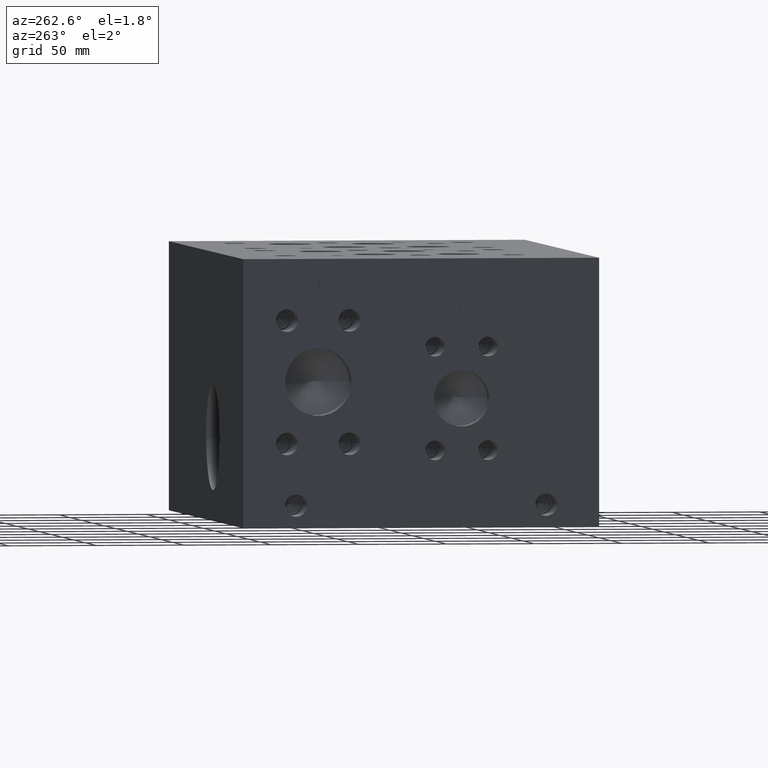
[diagram: clean part render]
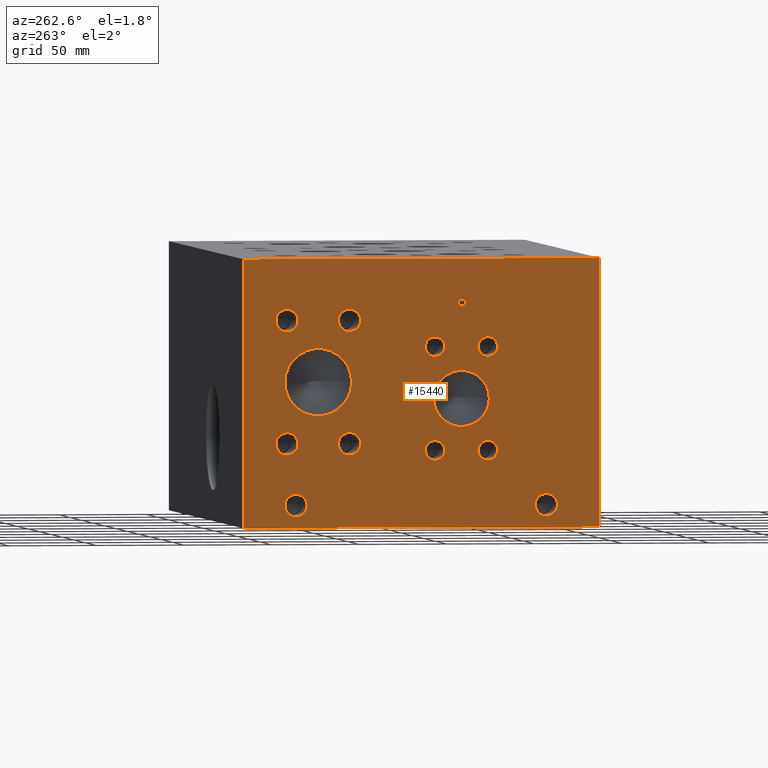
[diagram: same view with one face highlighted and labeled with its STEP entity id]
A machine part, auxiliary view. The second image highlights one B-rep face of the part: STEP entity #15440.
In plain terms, the highlighted planar face has unit normal (-1, 0, 0).
Its self-contained STEP definition (entity closure, byte-faithful):
#311=CIRCLE('',#16176,19.05);
#312=CIRCLE('',#16177,19.05);
#313=CIRCLE('',#16178,6.35);
#314=CIRCLE('',#16179,6.35);
#315=CIRCLE('',#16180,6.35);
#316=CIRCLE('',#16181,6.35);
#317=CIRCLE('',#16182,6.35);
#318=CIRCLE('',#16183,6.35);
#319=CIRCLE('',#16184,6.35);
#320=CIRCLE('',#16185,6.35);
#321=CIRCLE('',#16186,15.875);
#322=CIRCLE('',#16187,15.875);
#323=CIRCLE('',#16188,5.5626);
#324=CIRCLE('',#16189,5.5626);
#325=CIRCLE('',#16190,5.5626);
#326=CIRCLE('',#16191,5.5626);
#327=CIRCLE('',#16192,5.5626);
#328=CIRCLE('',#16193,5.5626);
#329=CIRCLE('',#16194,5.5626);
#330=CIRCLE('',#16195,5.5626);
#331=CIRCLE('',#16196,6.35);
#332=CIRCLE('',#16197,6.35);
#333=CIRCLE('',#16198,6.35);
#334=CIRCLE('',#16199,6.35);
#836=FACE_BOUND('',#2850,.T.);
#837=FACE_BOUND('',#2851,.T.);
#838=FACE_BOUND('',#2852,.T.);
#839=FACE_BOUND('',#2853,.T.);
#840=FACE_BOUND('',#2854,.T.);
#841=FACE_BOUND('',#2855,.T.);
#842=FACE_BOUND('',#2856,.T.);
#843=FACE_BOUND('',#2857,.T.);
#844=FACE_BOUND('',#2858,.T.);
#845=FACE_BOUND('',#2859,.T.);
#846=FACE_BOUND('',#2860,.T.);
#847=FACE_BOUND('',#2861,.T.);
#848=FACE_BOUND('',#2862,.T.);
#849=FACE_BOUND('',#2863,.T.);
#1258=B_SPLINE_CURVE_WITH_KNOTS('',2,(#25629,#25630,#25631,#25632),
 .UNSPECIFIED.,.F.,.F.,(3,1,3),(0.,1.,2.),.UNSPECIFIED.);
#1260=B_SPLINE_CURVE_WITH_KNOTS('',2,(#25650,#25651,#25652,#25653),
 .UNSPECIFIED.,.F.,.F.,(3,1,3),(0.,1.,2.),.UNSPECIFIED.);
#1262=B_SPLINE_CURVE_WITH_KNOTS('',2,(#25699,#25700,#25701,#25702),
 .UNSPECIFIED.,.F.,.F.,(3,1,3),(0.,1.,2.),.UNSPECIFIED.);
#1264=B_SPLINE_CURVE_WITH_KNOTS('',2,(#25717,#25718,#25719,#25720),
 .UNSPECIFIED.,.F.,.F.,(3,1,3),(0.,1.,2.),.UNSPECIFIED.);
#1949=FACE_OUTER_BOUND('',#2849,.T.);
#2849=EDGE_LOOP('',(#12487,#12488,#12489,#12490));
#2850=EDGE_LOOP('',(#12491,#12492));
#2851=EDGE_LOOP('',(#12493,#12494));
#2852=EDGE_LOOP('',(#12495,#12496));
#2853=EDGE_LOOP('',(#12497,#12498));
#2854=EDGE_LOOP('',(#12499,#12500));
#2855=EDGE_LOOP('',(#12501,#12502));
#2856=EDGE_LOOP('',(#12503,#12504));
#2857=EDGE_LOOP('',(#12505,#12506));
#2858=EDGE_LOOP('',(#12507,#12508));
#2859=EDGE_LOOP('',(#12509,#12510));
#2860=EDGE_LOOP('',(#12511,#12512));
#2861=EDGE_LOOP('',(#12513,#12514));
#2862=EDGE_LOOP('',(#12515,#12516,#12517,#12518,#12519,#12520,#12521,#12522));
#2863=EDGE_LOOP('',(#12523,#12524,#12525,#12526,#12527,#12528,#12529,#12530,
#12531));
#3582=LINE('',#22940,#4916);
#4311=LINE('',#25662,#5645);
#4314=LINE('',#25668,#5648);
#4317=LINE('',#25674,#5651);
#4320=LINE('',#25680,#5654);
#4323=LINE('',#25686,#5657);
#4327=LINE('',#25728,#5661);
#4328=LINE('',#25730,#5662);
#4329=LINE('',#25731,#5663);
#4330=LINE('',#25782,#5664);
#4331=LINE('',#25784,#5665);
#4332=LINE('',#25786,#5666);
#4333=LINE('',#25788,#5667);
#4334=LINE('',#25790,#5668);
#4335=LINE('',#25792,#5669);
#4336=LINE('',#25794,#5670);
#4337=LINE('',#25795,#5671);
#4916=VECTOR('',#17431,10.);
#5645=VECTOR('',#18812,10.);
#5648=VECTOR('',#18817,10.);
#5651=VECTOR('',#18822,10.);
#5654=VECTOR('',#18827,10.);
#5657=VECTOR('',#18832,10.);
#5661=VECTOR('',#18840,10.);
#5662=VECTOR('',#18841,10.);
#5663=VECTOR('',#18842,10.);
#5664=VECTOR('',#18891,10.);
#5665=VECTOR('',#18892,10.);
#5666=VECTOR('',#18893,10.);
#5667=VECTOR('',#18894,10.);
#5668=VECTOR('',#18895,10.);
#5669=VECTOR('',#18896,10.);
#5670=VECTOR('',#18897,10.);
#5671=VECTOR('',#18898,10.);
#6269=VERTEX_POINT('',#22933);
#6272=VERTEX_POINT('',#22938);
#6909=VERTEX_POINT('',#25627);
#6910=VERTEX_POINT('',#25628);
#6913=VERTEX_POINT('',#25649);
#6915=VERTEX_POINT('',#25661);
#6917=VERTEX_POINT('',#25667);
#6919=VERTEX_POINT('',#25673);
#6921=VERTEX_POINT('',#25679);
#6923=VERTEX_POINT('',#25685);
#6925=VERTEX_POINT('',#25698);
#6927=VERTEX_POINT('',#25727);
#6928=VERTEX_POINT('',#25729);
#6929=VERTEX_POINT('',#25732);
#6930=VERTEX_POINT('',#25733);
#6931=VERTEX_POINT('',#25736);
#6932=VERTEX_POINT('',#25737);
#6933=VERTEX_POINT('',#25740);
#6934=VERTEX_POINT('',#25741);
#6935=VERTEX_POINT('',#25744);
#6936=VERTEX_POINT('',#25745);
#6937=VERTEX_POINT('',#25748);
#6938=VERTEX_POINT('',#25749);
#6939=VERTEX_POINT('',#25752);
#6940=VERTEX_POINT('',#25753);
#6941=VERTEX_POINT('',#25756);
#6942=VERTEX_POINT('',#25757);
#6943=VERTEX_POINT('',#25760);
#6944=VERTEX_POINT('',#25761);
#6945=VERTEX_POINT('',#25764);
#6946=VERTEX_POINT('',#25765);
#6947=VERTEX_POINT('',#25768);
#6948=VERTEX_POINT('',#25769);
#6949=VERTEX_POINT('',#25772);
#6950=VERTEX_POINT('',#25773);
#6951=VERTEX_POINT('',#25776);
#6952=VERTEX_POINT('',#25777);
#6953=VERTEX_POINT('',#25780);
#6954=VERTEX_POINT('',#25781);
#6955=VERTEX_POINT('',#25783);
#6956=VERTEX_POINT('',#25785);
#6957=VERTEX_POINT('',#25787);
#6958=VERTEX_POINT('',#25789);
#6959=VERTEX_POINT('',#25791);
#6960=VERTEX_POINT('',#25793);
#7991=EDGE_CURVE('',#6269,#6272,#3582,.T.);
#8911=EDGE_CURVE('',#6909,#6910,#1258,.T.);
#8915=EDGE_CURVE('',#6913,#6909,#1260,.T.);
#8918=EDGE_CURVE('',#6915,#6913,#4311,.T.);
#8921=EDGE_CURVE('',#6917,#6915,#4314,.T.);
#8924=EDGE_CURVE('',#6919,#6917,#4317,.T.);
#8927=EDGE_CURVE('',#6921,#6919,#4320,.T.);
#8930=EDGE_CURVE('',#6923,#6921,#4323,.T.);
#8933=EDGE_CURVE('',#6925,#6923,#1262,.T.);
#8936=EDGE_CURVE('',#6910,#6925,#1264,.T.);
#8938=EDGE_CURVE('',#6927,#6269,#4327,.T.);
#8939=EDGE_CURVE('',#6928,#6272,#4328,.T.);
#8940=EDGE_CURVE('',#6927,#6928,#4329,.T.);
#8941=EDGE_CURVE('',#6929,#6930,#311,.T.);
#8942=EDGE_CURVE('',#6930,#6929,#312,.T.);
#8943=EDGE_CURVE('',#6931,#6932,#313,.T.);
#8944=EDGE_CURVE('',#6932,#6931,#314,.T.);
#8945=EDGE_CURVE('',#6933,#6934,#315,.T.);
#8946=EDGE_CURVE('',#6934,#6933,#316,.T.);
#8947=EDGE_CURVE('',#6935,#6936,#317,.T.);
#8948=EDGE_CURVE('',#6936,#6935,#318,.T.);
#8949=EDGE_CURVE('',#6937,#6938,#319,.T.);
#8950=EDGE_CURVE('',#6938,#6937,#320,.T.);
#8951=EDGE_CURVE('',#6939,#6940,#321,.T.);
#8952=EDGE_CURVE('',#6940,#6939,#322,.T.);
#8953=EDGE_CURVE('',#6941,#6942,#323,.T.);
#8954=EDGE_CURVE('',#6942,#6941,#324,.T.);
#8955=EDGE_CURVE('',#6943,#6944,#325,.T.);
#8956=EDGE_CURVE('',#6944,#6943,#326,.T.);
#8957=EDGE_CURVE('',#6945,#6946,#327,.T.);
#8958=EDGE_CURVE('',#6946,#6945,#328,.T.);
#8959=EDGE_CURVE('',#6947,#6948,#329,.T.);
#8960=EDGE_CURVE('',#6948,#6947,#330,.T.);
#8961=EDGE_CURVE('',#6949,#6950,#331,.T.);
#8962=EDGE_CURVE('',#6950,#6949,#332,.T.);
#8963=EDGE_CURVE('',#6951,#6952,#333,.T.);
#8964=EDGE_CURVE('',#6952,#6951,#334,.T.);
#8965=EDGE_CURVE('',#6953,#6954,#4330,.T.);
#8966=EDGE_CURVE('',#6954,#6955,#4331,.T.);
#8967=EDGE_CURVE('',#6955,#6956,#4332,.T.);
#8968=EDGE_CURVE('',#6956,#6957,#4333,.T.);
#8969=EDGE_CURVE('',#6957,#6958,#4334,.T.);
#8970=EDGE_CURVE('',#6958,#6959,#4335,.T.);
#8971=EDGE_CURVE('',#6959,#6960,#4336,.T.);
#8972=EDGE_CURVE('',#6960,#6953,#4337,.T.);
#12487=ORIENTED_EDGE('',*,*,#8938,.T.);
#12488=ORIENTED_EDGE('',*,*,#7991,.T.);
#12489=ORIENTED_EDGE('',*,*,#8939,.F.);
#12490=ORIENTED_EDGE('',*,*,#8940,.F.);
#12491=ORIENTED_EDGE('',*,*,#8941,.T.);
#12492=ORIENTED_EDGE('',*,*,#8942,.T.);
#12493=ORIENTED_EDGE('',*,*,#8943,.T.);
#12494=ORIENTED_EDGE('',*,*,#8944,.T.);
#12495=ORIENTED_EDGE('',*,*,#8945,.T.);
#12496=ORIENTED_EDGE('',*,*,#8946,.T.);
#12497=ORIENTED_EDGE('',*,*,#8947,.T.);
#12498=ORIENTED_EDGE('',*,*,#8948,.T.);
#12499=ORIENTED_EDGE('',*,*,#8949,.T.);
#12500=ORIENTED_EDGE('',*,*,#8950,.T.);
#12501=ORIENTED_EDGE('',*,*,#8951,.T.);
#12502=ORIENTED_EDGE('',*,*,#8952,.T.);
#12503=ORIENTED_EDGE('',*,*,#8953,.T.);
#12504=ORIENTED_EDGE('',*,*,#8954,.T.);
#12505=ORIENTED_EDGE('',*,*,#8955,.T.);
#12506=ORIENTED_EDGE('',*,*,#8956,.T.);
#12507=ORIENTED_EDGE('',*,*,#8957,.T.);
#12508=ORIENTED_EDGE('',*,*,#8958,.T.);
#12509=ORIENTED_EDGE('',*,*,#8959,.T.);
#12510=ORIENTED_EDGE('',*,*,#8960,.T.);
#12511=ORIENTED_EDGE('',*,*,#8961,.T.);
#12512=ORIENTED_EDGE('',*,*,#8962,.T.);
#12513=ORIENTED_EDGE('',*,*,#8963,.T.);
#12514=ORIENTED_EDGE('',*,*,#8964,.T.);
#12515=ORIENTED_EDGE('',*,*,#8965,.T.);
#12516=ORIENTED_EDGE('',*,*,#8966,.T.);
#12517=ORIENTED_EDGE('',*,*,#8967,.T.);
#12518=ORIENTED_EDGE('',*,*,#8968,.T.);
#12519=ORIENTED_EDGE('',*,*,#8969,.T.);
#12520=ORIENTED_EDGE('',*,*,#8970,.T.);
#12521=ORIENTED_EDGE('',*,*,#8971,.T.);
#12522=ORIENTED_EDGE('',*,*,#8972,.T.);
#12523=ORIENTED_EDGE('',*,*,#8911,.T.);
#12524=ORIENTED_EDGE('',*,*,#8936,.T.);
#12525=ORIENTED_EDGE('',*,*,#8933,.T.);
#12526=ORIENTED_EDGE('',*,*,#8930,.T.);
#12527=ORIENTED_EDGE('',*,*,#8927,.T.);
#12528=ORIENTED_EDGE('',*,*,#8924,.T.);
#12529=ORIENTED_EDGE('',*,*,#8921,.T.);
#12530=ORIENTED_EDGE('',*,*,#8918,.T.);
#12531=ORIENTED_EDGE('',*,*,#8915,.T.);
#14342=PLANE('',#16175);
#15440=ADVANCED_FACE('',(#1949,#836,#837,#838,#839,#840,#841,#842,#843,
#844,#845,#846,#847,#848,#849),#14342,.T.);
#16175=AXIS2_PLACEMENT_3D('',#25726,#18838,#18839);
#16176=AXIS2_PLACEMENT_3D('',#25734,#18843,#18844);
#16177=AXIS2_PLACEMENT_3D('',#25735,#18845,#18846);
#16178=AXIS2_PLACEMENT_3D('',#25738,#18847,#18848);
#16179=AXIS2_PLACEMENT_3D('',#25739,#18849,#18850);
#16180=AXIS2_PLACEMENT_3D('',#25742,#18851,#18852);
#16181=AXIS2_PLACEMENT_3D('',#25743,#18853,#18854);
#16182=AXIS2_PLACEMENT_3D('',#25746,#18855,#18856);
#16183=AXIS2_PLACEMENT_3D('',#25747,#18857,#18858);
#16184=AXIS2_PLACEMENT_3D('',#25750,#18859,#18860);
#16185=AXIS2_PLACEMENT_3D('',#25751,#18861,#18862);
#16186=AXIS2_PLACEMENT_3D('',#25754,#18863,#18864);
#16187=AXIS2_PLACEMENT_3D('',#25755,#18865,#18866);
#16188=AXIS2_PLACEMENT_3D('',#25758,#18867,#18868);
#16189=AXIS2_PLACEMENT_3D('',#25759,#18869,#18870);
#16190=AXIS2_PLACEMENT_3D('',#25762,#18871,#18872);
#16191=AXIS2_PLACEMENT_3D('',#25763,#18873,#18874);
#16192=AXIS2_PLACEMENT_3D('',#25766,#18875,#18876);
#16193=AXIS2_PLACEMENT_3D('',#25767,#18877,#18878);
#16194=AXIS2_PLACEMENT_3D('',#25770,#18879,#18880);
#16195=AXIS2_PLACEMENT_3D('',#25771,#18881,#18882);
#16196=AXIS2_PLACEMENT_3D('',#25774,#18883,#18884);
#16197=AXIS2_PLACEMENT_3D('',#25775,#18885,#18886);
#16198=AXIS2_PLACEMENT_3D('',#25778,#18887,#18888);
#16199=AXIS2_PLACEMENT_3D('',#25779,#18889,#18890);
#17431=DIRECTION('',(0.,0.,1.));
#18812=DIRECTION('',(0.,-1.,0.));
#18817=DIRECTION('',(0.,-2.79741238752512E-15,1.));
#18822=DIRECTION('',(0.,1.,0.));
#18827=DIRECTION('',(0.,7.50436279610002E-15,-1.));
#18832=DIRECTION('',(0.,1.,0.));
#18838=DIRECTION('center_axis',(-1.,0.,0.));
#18839=DIRECTION('ref_axis',(0.,-1.,0.));
#18840=DIRECTION('',(0.,-1.,0.));
#18841=DIRECTION('',(0.,-1.,0.));
#18842=DIRECTION('',(0.,0.,1.));
#18843=DIRECTION('center_axis',(1.,0.,0.));
#18844=DIRECTION('ref_axis',(0.,1.,0.));
#18845=DIRECTION('center_axis',(1.,0.,0.));
#18846=DIRECTION('ref_axis',(0.,1.,0.));
#18847=DIRECTION('center_axis',(1.,0.,0.));
#18848=DIRECTION('ref_axis',(0.,1.,0.));
#18849=DIRECTION('center_axis',(1.,0.,0.));
#18850=DIRECTION('ref_axis',(0.,1.,0.));
#18851=DIRECTION('center_axis',(1.,0.,0.));
#18852=DIRECTION('ref_axis',(0.,1.,0.));
#18853=DIRECTION('center_axis',(1.,0.,0.));
#18854=DIRECTION('ref_axis',(0.,1.,0.));
#18855=DIRECTION('center_axis',(1.,0.,0.));
#18856=DIRECTION('ref_axis',(0.,1.,0.));
#18857=DIRECTION('center_axis',(1.,0.,0.));
#18858=DIRECTION('ref_axis',(0.,1.,0.));
#18859=DIRECTION('center_axis',(1.,0.,0.));
#18860=DIRECTION('ref_axis',(0.,1.,0.));
#18861=DIRECTION('center_axis',(1.,0.,0.));
#18862=DIRECTION('ref_axis',(0.,1.,0.));
#18863=DIRECTION('center_axis',(1.,0.,0.));
#18864=DIRECTION('ref_axis',(0.,1.,0.));
#18865=DIRECTION('center_axis',(1.,0.,0.));
#18866=DIRECTION('ref_axis',(0.,1.,0.));
#18867=DIRECTION('center_axis',(1.,0.,0.));
#18868=DIRECTION('ref_axis',(0.,1.,0.));
#18869=DIRECTION('center_axis',(1.,0.,0.));
#18870=DIRECTION('ref_axis',(0.,1.,0.));
#18871=DIRECTION('center_axis',(1.,0.,0.));
#18872=DIRECTION('ref_axis',(0.,1.,0.));
#18873=DIRECTION('center_axis',(1.,0.,0.));
#18874=DIRECTION('ref_axis',(0.,1.,0.));
#18875=DIRECTION('center_axis',(1.,0.,0.));
#18876=DIRECTION('ref_axis',(0.,1.,0.));
#18877=DIRECTION('center_axis',(1.,0.,0.));
#18878=DIRECTION('ref_axis',(0.,1.,0.));
#18879=DIRECTION('center_axis',(1.,0.,0.));
#18880=DIRECTION('ref_axis',(0.,1.,0.));
#18881=DIRECTION('center_axis',(1.,0.,0.));
#18882=DIRECTION('ref_axis',(0.,1.,0.));
#18883=DIRECTION('center_axis',(1.,0.,0.));
#18884=DIRECTION('ref_axis',(0.,1.,0.));
#18885=DIRECTION('center_axis',(1.,0.,0.));
#18886=DIRECTION('ref_axis',(0.,1.,0.));
#18887=DIRECTION('center_axis',(1.,0.,0.));
#18888=DIRECTION('ref_axis',(0.,1.,0.));
#18889=DIRECTION('center_axis',(1.,0.,0.));
#18890=DIRECTION('ref_axis',(0.,1.,0.));
#18891=DIRECTION('',(0.,1.,0.));
#18892=DIRECTION('',(0.,0.,1.));
#18893=DIRECTION('',(0.,1.,8.33818088455555E-15));
#18894=DIRECTION('',(0.,0.,1.));
#18895=DIRECTION('',(0.,-1.,-3.47984565141733E-15));
#18896=DIRECTION('',(0.,0.,-1.));
#18897=DIRECTION('',(0.,1.,8.33818088455555E-15));
#18898=DIRECTION('',(0.,0.,-1.));
#22933=CARTESIAN_POINT('',(0.,0.,0.));
#22938=CARTESIAN_POINT('',(0.,0.,152.4));
#22940=CARTESIAN_POINT('',(0.,0.,0.));
#25627=CARTESIAN_POINT('',(0.,77.0619327976406,128.985018143971));
#25628=CARTESIAN_POINT('',(0.,76.305490345468,127.466987372604));
#25629=CARTESIAN_POINT('Ctrl Pts',(0.,77.0619327976406,128.985018143971));
#25630=CARTESIAN_POINT('Ctrl Pts',(0.,76.7068679731514,128.743162393956));
#25631=CARTESIAN_POINT('Ctrl Pts',(0.,76.305490345468,127.997011675827));
#25632=CARTESIAN_POINT('Ctrl Pts',(0.,76.305490345468,127.466987372604));
#25649=CARTESIAN_POINT('',(0.,78.7240478456117,129.381249904633));
#25650=CARTESIAN_POINT('Ctrl Pts',(0.,78.7240478456117,129.381249904633));
#25651=CARTESIAN_POINT('Ctrl Pts',(0.,78.1580024732377,129.381249904633));
#25652=CARTESIAN_POINT('Ctrl Pts',(0.,77.365538951914,129.195998691856));
#25653=CARTESIAN_POINT('Ctrl Pts',(0.,77.0619327976406,128.985018143971));
#25661=CARTESIAN_POINT('',(0.,80.3192666223022,129.381249904633));
#25662=CARTESIAN_POINT('',(0.,141.759633311151,129.381249904633));
#25667=CARTESIAN_POINT('',(0.,80.3192666223023,123.03125));
#25668=CARTESIAN_POINT('',(0.,80.3192666223024,61.5156249999998));
#25673=CARTESIAN_POINT('',(0.,79.4753444307627,123.03125));
#25674=CARTESIAN_POINT('',(0.,141.337672215381,123.03125));
#25679=CARTESIAN_POINT('',(0.,79.4753444307627,125.398348829928));
#25680=CARTESIAN_POINT('',(0.,79.4753444307632,62.6991744149635));
#25685=CARTESIAN_POINT('',(0.,78.7600689147628,125.398348829928));
#25686=CARTESIAN_POINT('',(0.,140.980034457381,125.398348829928));
#25698=CARTESIAN_POINT('',(0.,76.8612439837989,126.05701980869));
#25699=CARTESIAN_POINT('Ctrl Pts',(0.,76.8612439837989,126.05701980869));
#25700=CARTESIAN_POINT('Ctrl Pts',(0.,77.1905794731802,125.732830186331));
#25701=CARTESIAN_POINT('Ctrl Pts',(0.,78.0808144679139,125.398348829928));
#25702=CARTESIAN_POINT('Ctrl Pts',(0.,78.7600689147628,125.398348829928));
#25717=CARTESIAN_POINT('Ctrl Pts',(0.,76.305490345468,127.466987372604));
#25718=CARTESIAN_POINT('Ctrl Pts',(0.,76.305490345468,127.055318010877));
#25719=CARTESIAN_POINT('Ctrl Pts',(0.,76.5988047656982,126.31431315977));
#25720=CARTESIAN_POINT('Ctrl Pts',(0.,76.8612439837989,126.05701980869));
#25726=CARTESIAN_POINT('Origin',(0.,203.2,0.));
#25727=CARTESIAN_POINT('',(0.,203.2,0.));
#25728=CARTESIAN_POINT('',(0.,203.2,0.));
#25729=CARTESIAN_POINT('',(0.,203.2,152.4));
#25730=CARTESIAN_POINT('',(0.,203.2,152.4));
#25731=CARTESIAN_POINT('',(0.,203.2,0.));
#25732=CARTESIAN_POINT('',(0.,179.4002,82.55));
#25733=CARTESIAN_POINT('',(0.,141.3002,82.55));
#25734=CARTESIAN_POINT('Origin',(0.,160.3502,82.55));
#25735=CARTESIAN_POINT('Origin',(0.,160.3502,82.55));
#25736=CARTESIAN_POINT('',(0.,148.844,117.475));
#25737=CARTESIAN_POINT('',(2.22044604925031E-15,136.144,117.475));
#25738=CARTESIAN_POINT('Origin',(0.,142.494,117.475));
#25739=CARTESIAN_POINT('Origin',(0.,142.494,117.475));
#25740=CARTESIAN_POINT('',(0.,184.5564,117.475));
#25741=CARTESIAN_POINT('',(2.22044604925031E-15,171.8564,117.475));
#25742=CARTESIAN_POINT('Origin',(0.,178.2064,117.475));
#25743=CARTESIAN_POINT('Origin',(0.,178.2064,117.475));
#25744=CARTESIAN_POINT('',(0.,148.844,47.625));
#25745=CARTESIAN_POINT('',(2.22044604925031E-15,136.144,47.625));
#25746=CARTESIAN_POINT('Origin',(0.,142.494,47.625));
#25747=CARTESIAN_POINT('Origin',(0.,142.494,47.625));
#25748=CARTESIAN_POINT('',(0.,184.5564,47.625));
#25749=CARTESIAN_POINT('',(2.22044604925031E-15,171.8564,47.625));
#25750=CARTESIAN_POINT('Origin',(0.,178.2064,47.625));
#25751=CARTESIAN_POINT('Origin',(0.,178.2064,47.625));
#25752=CARTESIAN_POINT('',(0.,94.4626,73.025));
#25753=CARTESIAN_POINT('',(0.,62.7126,73.025));
#25754=CARTESIAN_POINT('Origin',(0.,78.5876,73.025));
#25755=CARTESIAN_POINT('Origin',(0.,78.5876,73.025));
#25756=CARTESIAN_POINT('',(0.,99.2378,43.6626));
#25757=CARTESIAN_POINT('',(0.,88.1126,43.6626));
#25758=CARTESIAN_POINT('Origin',(0.,93.6752,43.6626));
#25759=CARTESIAN_POINT('Origin',(0.,93.6752,43.6626));
#25760=CARTESIAN_POINT('',(0.,69.06768,102.3874));
#25761=CARTESIAN_POINT('',(0.,57.94248,102.3874));
#25762=CARTESIAN_POINT('Origin',(0.,63.50508,102.3874));
#25763=CARTESIAN_POINT('Origin',(0.,63.50508,102.3874));
#25764=CARTESIAN_POINT('',(0.,99.2378,102.39248));
#25765=CARTESIAN_POINT('',(0.,88.1126,102.39248));
#25766=CARTESIAN_POINT('Origin',(0.,93.6752,102.39248));
#25767=CARTESIAN_POINT('Origin',(0.,93.6752,102.39248));
#25768=CARTESIAN_POINT('',(0.,69.06768,43.65752));
#25769=CARTESIAN_POINT('',(0.,57.94248,43.65752));
#25770=CARTESIAN_POINT('Origin',(0.,63.50508,43.65752));
#25771=CARTESIAN_POINT('Origin',(0.,63.50508,43.65752));
#25772=CARTESIAN_POINT('',(0.,179.3748,12.7));
#25773=CARTESIAN_POINT('',(0.,166.6748,12.7));
#25774=CARTESIAN_POINT('Origin',(0.,173.0248,12.7));
#25775=CARTESIAN_POINT('Origin',(0.,173.0248,12.7));
#25776=CARTESIAN_POINT('',(0.,36.5252,12.7));
#25777=CARTESIAN_POINT('',(0.,23.8252,12.7));
#25778=CARTESIAN_POINT('Origin',(0.,30.1752,12.7));
#25779=CARTESIAN_POINT('Origin',(0.,30.1752,12.7));
#25780=CARTESIAN_POINT('',(0.,159.749584728547,135.73125));
#25781=CARTESIAN_POINT('',(0.,160.593506920087,135.73125));
#25782=CARTESIAN_POINT('',(0.,181.474792364274,135.73125));
#25783=CARTESIAN_POINT('',(0.,160.593506920087,141.329953319482));
#25784=CARTESIAN_POINT('',(0.,160.593506920087,67.865625));
#25785=CARTESIAN_POINT('',(0.,162.723895867022,141.329953319482));
#25786=CARTESIAN_POINT('',(0.,181.896753460043,141.329953319482));
#25787=CARTESIAN_POINT('',(0.,162.723895867022,142.081249904633));
#25788=CARTESIAN_POINT('',(0.,162.723895867022,70.6649766597408));
#25789=CARTESIAN_POINT('',(0.,157.619195781612,142.081249904633));
#25790=CARTESIAN_POINT('',(0.,182.961947933511,142.081249904633));
#25791=CARTESIAN_POINT('',(0.,157.619195781612,141.329953319482));
#25792=CARTESIAN_POINT('',(0.,157.619195781612,71.0406249523163));
#25793=CARTESIAN_POINT('',(0.,159.749584728547,141.329953319482));
#25794=CARTESIAN_POINT('',(0.,180.409597890805,141.329953319482));
#25795=CARTESIAN_POINT('',(0.,159.749584728547,70.6649766597408));